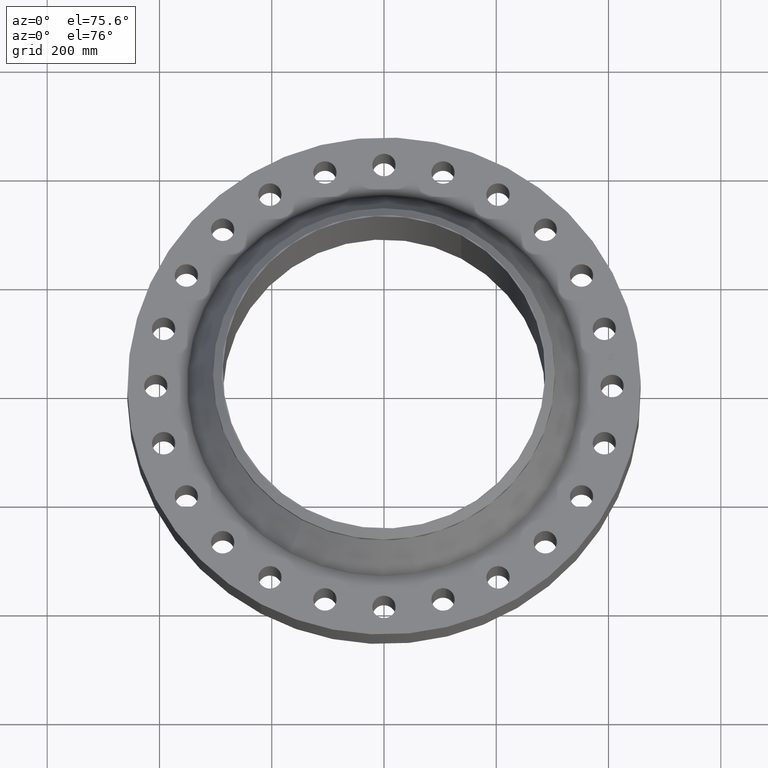
[diagram: clean part render]
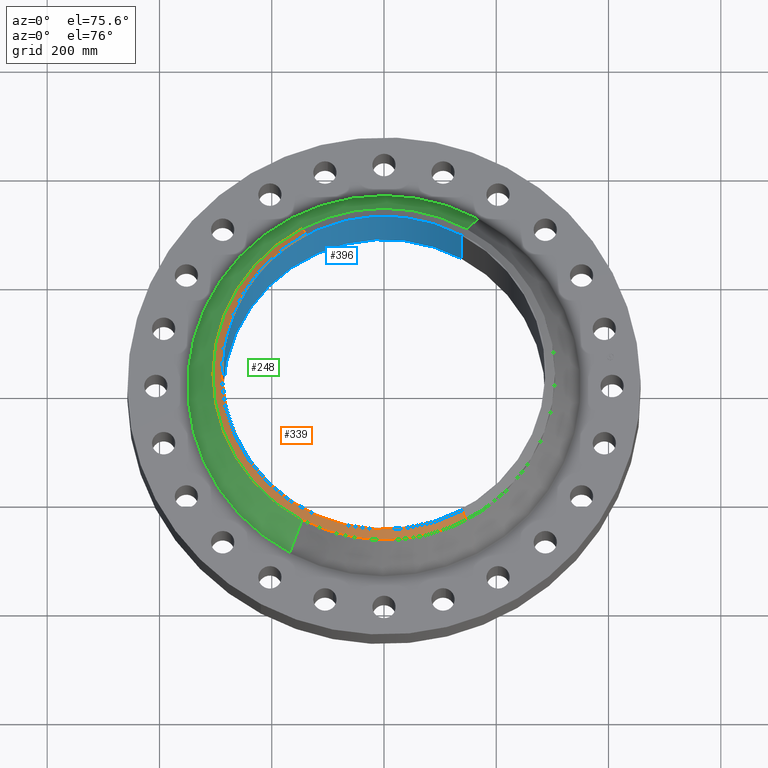
[diagram: same view with three faces highlighted in distinct colors, each labeled with its STEP entity id]
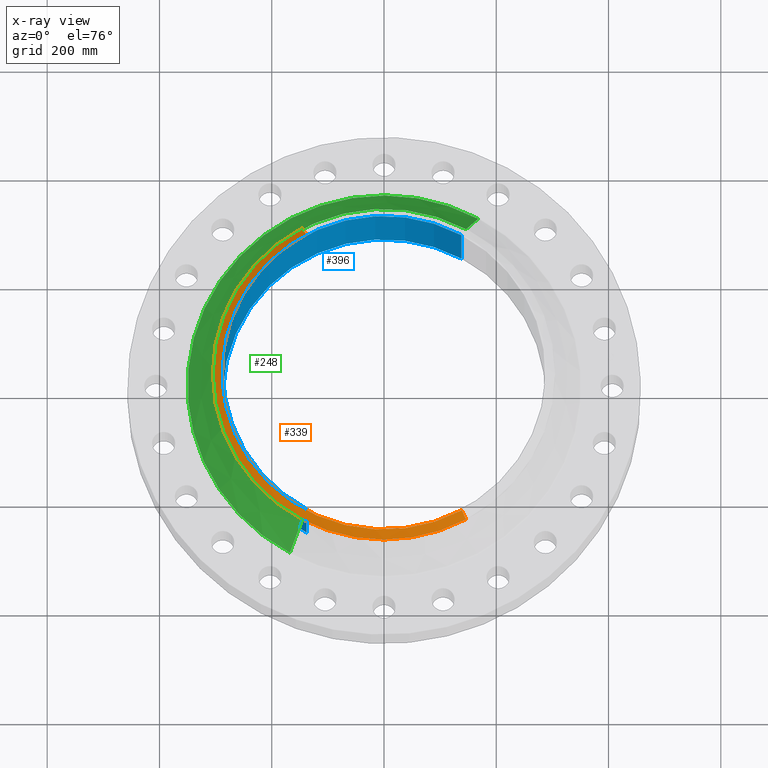
[diagram: x-ray of the same camera — body ghosted, the three highlighted faces saturated]
A machine part, auxiliary view with three faces highlighted in distinct colors.
The next image is the same camera in x-ray (body ghosted, the three faces saturated) — at least one of them is partly hidden behind the body in this view.
Their STEP definitions:

[orange] entity #339 — the highlighted conical surface has half-angle 52.5 deg.
#277=AXIS2_PLACEMENT_3D('Circle Axis2P3D',#275,#276,$) ;
#290=AXIS2_PLACEMENT_3D('Circle Axis2P3D',#288,#289,$) ;
#311=AXIS2_PLACEMENT_3D('Cone Axis2P3D',#308,#309,#310) ;
#322=AXIS2_PLACEMENT_3D('Circle Axis2P3D',#320,#321,$) ;
#258=CARTESIAN_POINT('Vertex',(-5.75310646327,-10.5309907427,6.09249848017)) ;
#272=CARTESIAN_POINT('Vertex',(5.75310646327,-10.5309907427,6.09249848017)) ;
#275=CARTESIAN_POINT('Axis2P3D Location',(0.,0.,6.09249848017)) ;
#288=CARTESIAN_POINT('Axis2P3D Location',(0.,0.,6.09249848017)) ;
#292=CARTESIAN_POINT('Vertex',(-5.75310646327,10.5309907427,6.09249848017)) ;
#308=CARTESIAN_POINT('Axis2P3D Location',(0.,0.,6.56000000003)) ;
#313=CARTESIAN_POINT('Line Origine',(5.6070590992,-10.263652836,6.3262492401)) ;
#317=CARTESIAN_POINT('Vertex',(5.46101173512,-9.99631492927,6.56000000003)) ;
#320=CARTESIAN_POINT('Axis2P3D Location',(0.,0.,6.56000000003)) ;
#324=CARTESIAN_POINT('Vertex',(-5.46101173512,9.99631492927,6.56000000003)) ;
#327=CARTESIAN_POINT('Line Origine',(-5.6070590992,10.263652836,6.3262492401)) ;
#276=DIRECTION('Axis2P3D Direction',(0.,0.,-0.0393700787402)) ;
#289=DIRECTION('Axis2P3D Direction',(0.,0.,-0.0393700787402)) ;
#309=DIRECTION('Axis2P3D Direction',(-0.,-0.,-0.0393700787402)) ;
#310=DIRECTION('Axis2P3D XDirection',(-0.0188750212049,0.0345504945626,0.)) ;
#314=DIRECTION('Vector Direction',(0.014974561121,-0.02741075027,-0.023966985394)) ;
#321=DIRECTION('Axis2P3D Direction',(0.,0.,-0.0393700787402)) ;
#328=DIRECTION('Vector Direction',(-0.014974561121,0.02741075027,-0.023966985394)) ;
#315=VECTOR('Line Direction',#314,0.0393700787402) ;
#329=VECTOR('Line Direction',#328,0.0393700787402) ;
#333=ORIENTED_EDGE('',*,*,#319,.F.) ;
#334=ORIENTED_EDGE('',*,*,#326,.F.) ;
#335=ORIENTED_EDGE('',*,*,#331,.T.) ;
#336=ORIENTED_EDGE('',*,*,#294,.T.) ;
#337=ORIENTED_EDGE('',*,*,#279,.F.) ;
#339=ADVANCED_FACE('PartBody',(#338),#312,.T.) ;
#278=CIRCLE('generated circle',#277,12.) ;
#291=CIRCLE('generated circle',#290,12.) ;
#323=CIRCLE('generated circle',#322,11.3907401575) ;
#312=CONICAL_SURFACE('Cone',#311,11.3907401575,0.916297857297) ;
#279=EDGE_CURVE('',#273,#259,#278,.T.) ;
#294=EDGE_CURVE('',#293,#259,#291,.F.) ;
#319=EDGE_CURVE('',#318,#273,#316,.T.) ;
#326=EDGE_CURVE('',#325,#318,#323,.F.) ;
#331=EDGE_CURVE('',#325,#293,#330,.T.) ;
#332=EDGE_LOOP('',(#333,#334,#335,#336,#337)) ;
#338=FACE_OUTER_BOUND('',#332,.T.) ;
#316=LINE('Line',#313,#315) ;
#330=LINE('Line',#327,#329) ;
#259=VERTEX_POINT('',#258) ;
#273=VERTEX_POINT('',#272) ;
#293=VERTEX_POINT('',#292) ;
#318=VERTEX_POINT('',#317) ;
#325=VERTEX_POINT('',#324) ;

[blue] entity #396 — the highlighted cylindrical surface (partial cylindrical patch) has radius 287.325 mm, axis along (0, 0, -1).
#343=AXIS2_PLACEMENT_3D('Cylinder Axis2P3D',#340,#341,#342) ;
#382=AXIS2_PLACEMENT_3D('Circle Axis2P3D',#380,#381,$) ;
#387=AXIS2_PLACEMENT_3D('Circle Axis2P3D',#385,#386,$) ;
#340=CARTESIAN_POINT('Axis2P3D Location',(0.,0.,3.24875000001)) ;
#349=CARTESIAN_POINT('Vertex',(5.42326169271,9.92721394014,6.56000000003)) ;
#351=CARTESIAN_POINT('Vertex',(-5.42326169271,-9.92721394014,6.56000000003)) ;
#354=CARTESIAN_POINT('Line Origine',(5.42326169271,9.92721394014,3.24875000001)) ;
#358=CARTESIAN_POINT('Vertex',(5.42326169271,9.92721394014,-0.0625000000004)) ;
#365=CARTESIAN_POINT('Vertex',(-5.42326169271,-9.92721394014,-0.0625000000004)) ;
#368=CARTESIAN_POINT('Line Origine',(-5.42326169271,-9.92721394014,3.24875000001)) ;
#380=CARTESIAN_POINT('Axis2P3D Location',(0.,0.,6.56000000003)) ;
#385=CARTESIAN_POINT('Axis2P3D Location',(0.,0.,-0.0625000000004)) ;
#341=DIRECTION('Axis2P3D Direction',(0.,0.,-0.0393700787402)) ;
#342=DIRECTION('Axis2P3D XDirection',(-0.0188750212049,-0.0345504945626,0.)) ;
#355=DIRECTION('Vector Direction',(0.,0.,-0.0393700787402)) ;
#369=DIRECTION('Vector Direction',(0.,0.,-0.0393700787402)) ;
#381=DIRECTION('Axis2P3D Direction',(0.,0.,-0.0393700787402)) ;
#386=DIRECTION('Axis2P3D Direction',(0.,0.,-0.0393700787402)) ;
#356=VECTOR('Line Direction',#355,0.0393700787402) ;
#370=VECTOR('Line Direction',#369,0.0393700787402) ;
#391=ORIENTED_EDGE('',*,*,#384,.F.) ;
#392=ORIENTED_EDGE('',*,*,#372,.T.) ;
#393=ORIENTED_EDGE('',*,*,#389,.T.) ;
#394=ORIENTED_EDGE('',*,*,#360,.F.) ;
#396=ADVANCED_FACE('PartBody',(#395),#344,.F.) ;
#383=CIRCLE('generated circle',#382,11.312) ;
#388=CIRCLE('generated circle',#387,11.312) ;
#344=CYLINDRICAL_SURFACE('generated cylinder',#343,11.312) ;
#360=EDGE_CURVE('',#350,#359,#357,.T.) ;
#372=EDGE_CURVE('',#352,#366,#371,.T.) ;
#384=EDGE_CURVE('',#352,#350,#383,.T.) ;
#389=EDGE_CURVE('',#366,#359,#388,.T.) ;
#390=EDGE_LOOP('',(#391,#392,#393,#394)) ;
#395=FACE_OUTER_BOUND('',#390,.T.) ;
#357=LINE('Line',#354,#356) ;
#371=LINE('Line',#368,#370) ;
#350=VERTEX_POINT('',#349) ;
#352=VERTEX_POINT('',#351) ;
#359=VERTEX_POINT('',#358) ;
#366=VERTEX_POINT('',#365) ;

[green] entity #248 — the highlighted conical surface has half-angle 29.754 deg.
#196=AXIS2_PLACEMENT_3D('Circle Axis2P3D',#194,#195,$) ;
#209=AXIS2_PLACEMENT_3D('Cone Axis2P3D',#206,#207,#208) ;
#239=AXIS2_PLACEMENT_3D('Circle Axis2P3D',#237,#238,$) ;
#167=CARTESIAN_POINT('Vertex',(6.60430066279,12.0890912737,2.75044600833)) ;
#174=CARTESIAN_POINT('Vertex',(-6.60430066279,-12.0890912737,2.75044600833)) ;
#194=CARTESIAN_POINT('Axis2P3D Location',(0.,0.,2.75044600833)) ;
#206=CARTESIAN_POINT('Axis2P3D Location',(0.,0.,5.85627800773)) ;
#211=CARTESIAN_POINT('Line Origine',(6.17870356303,11.3100410082,4.30336200803)) ;
#215=CARTESIAN_POINT('Vertex',(5.75310646327,10.5309907427,5.85627800773)) ;
#222=CARTESIAN_POINT('Vertex',(-5.75310646327,-10.5309907427,5.85627800773)) ;
#225=CARTESIAN_POINT('Line Origine',(-6.17870356303,-11.3100410082,4.30336200803)) ;
#237=CARTESIAN_POINT('Axis2P3D Location',(0.,0.,5.85627800773)) ;
#195=DIRECTION('Axis2P3D Direction',(0.,0.,-0.0393700787402)) ;
#207=DIRECTION('Axis2P3D Direction',(0.,0.,-0.0393700787402)) ;
#208=DIRECTION('Axis2P3D XDirection',(-0.0188750212049,-0.0345504945626,0.)) ;
#212=DIRECTION('Vector Direction',(0.00936735713206,0.0171468322151,-0.0341795533229)) ;
#226=DIRECTION('Vector Direction',(-0.00936735713206,-0.0171468322151,-0.0341795533229)) ;
#238=DIRECTION('Axis2P3D Direction',(0.,0.,-0.0393700787402)) ;
#213=VECTOR('Line Direction',#212,0.0393700787402) ;
#227=VECTOR('Line Direction',#226,0.0393700787402) ;
#243=ORIENTED_EDGE('',*,*,#198,.F.) ;
#244=ORIENTED_EDGE('',*,*,#229,.T.) ;
#245=ORIENTED_EDGE('',*,*,#241,.T.) ;
#246=ORIENTED_EDGE('',*,*,#217,.F.) ;
#248=ADVANCED_FACE('PartBody',(#247),#210,.T.) ;
#197=CIRCLE('generated circle',#196,13.7754460933) ;
#240=CIRCLE('generated circle',#239,12.) ;
#210=CONICAL_SURFACE('Cone',#209,12.,0.519312349388) ;
#198=EDGE_CURVE('',#175,#168,#197,.T.) ;
#217=EDGE_CURVE('',#168,#216,#214,.F.) ;
#229=EDGE_CURVE('',#175,#223,#228,.F.) ;
#241=EDGE_CURVE('',#223,#216,#240,.T.) ;
#242=EDGE_LOOP('',(#243,#244,#245,#246)) ;
#247=FACE_OUTER_BOUND('',#242,.T.) ;
#214=LINE('Line',#211,#213) ;
#228=LINE('Line',#225,#227) ;
#168=VERTEX_POINT('',#167) ;
#175=VERTEX_POINT('',#174) ;
#216=VERTEX_POINT('',#215) ;
#223=VERTEX_POINT('',#222) ;